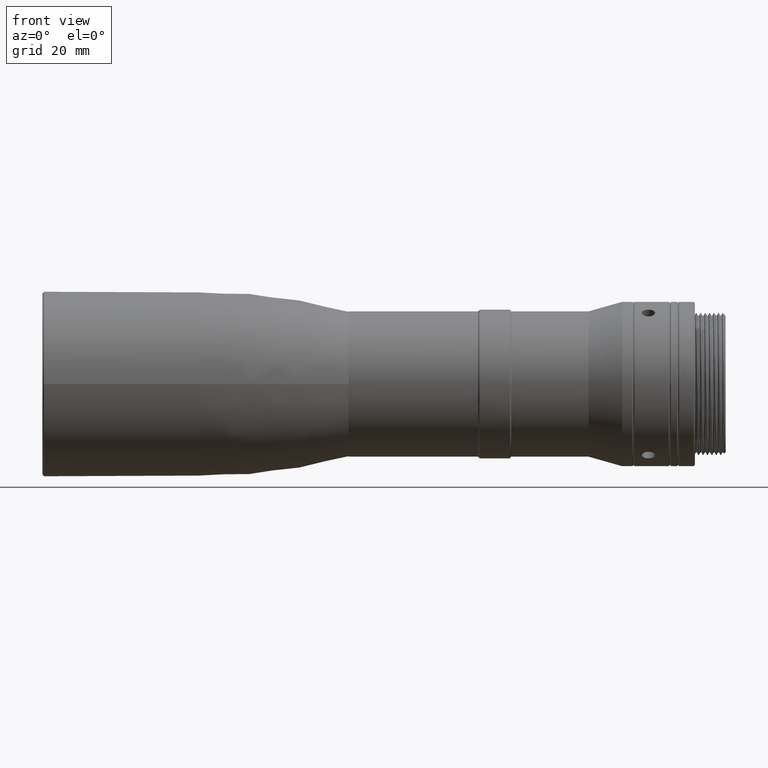
[diagram: clean part render]
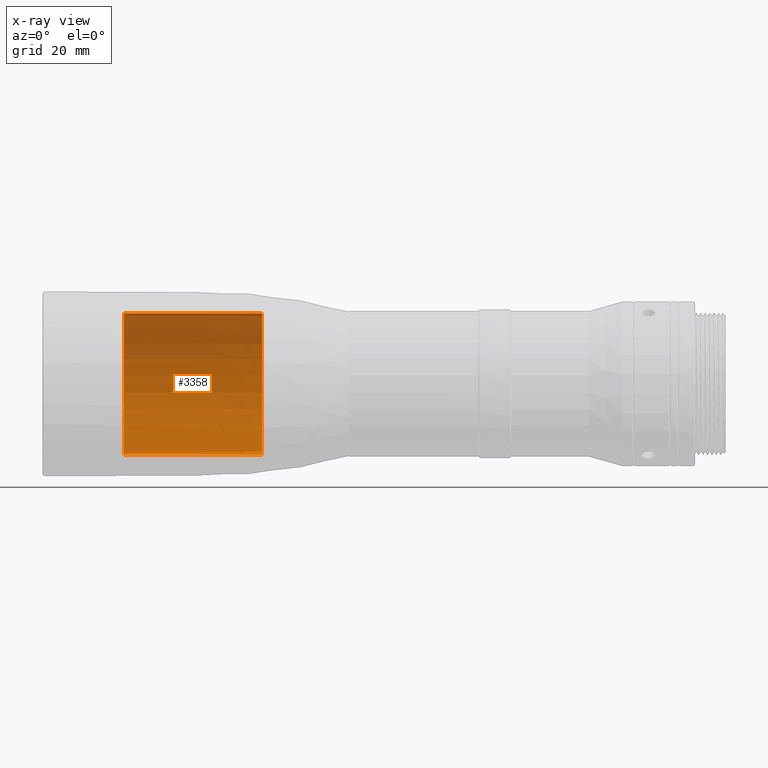
[diagram: x-ray — body ghosted, one internal face saturated and labeled with its STEP entity id]
A machine part, front view, then the same camera in x-ray: the body is ghosted and one INTERNAL B-rep face — a face not visible from any outside direction — is saturated and labeled: STEP entity #3358.
In plain terms, the highlighted cylindrical surface (partial cylindrical patch) has radius 12.6331 mm, axis along (-1, 0, 0).
Its self-contained STEP definition (entity closure, byte-faithful):
#989 = CARTESIAN_POINT ( 'NONE',  ( -15.52149944627313083, 0.000000000000000000, 0.000000000000000000 ) ) ;
#1296 = LINE ( 'NONE', #17005, #10751 ) ;
#2287 = ORIENTED_EDGE ( 'NONE', *, *, #12516, .F. ) ;
#2369 = CIRCLE ( 'NONE', #16040, 12.63312487934869921 ) ;
#2855 = CIRCLE ( 'NONE', #7745, 12.63312487934869921 ) ;
#3074 = EDGE_CURVE ( 'NONE', #13831, #12645, #13966, .T. ) ;
#3358 = ADVANCED_FACE ( 'NONE', ( #13576 ), #4640, .T. ) ;
#4178 = DIRECTION ( 'NONE',  ( 0.000000000000000000, 0.000000000000000000, 1.000000000000000000 ) ) ;
#4426 = EDGE_CURVE ( 'NONE', #14087, #12645, #2369, .T. ) ;
#4640 = CYLINDRICAL_SURFACE ( 'NONE', #14860, 12.63312487934869921 ) ;
#5221 = EDGE_LOOP ( 'NONE', ( #14060, #7344, #10333, #2287 ) ) ;
#6103 = CARTESIAN_POINT ( 'NONE',  ( -15.52149944627313083, 0.000000000000000000, 12.63312487934869921 ) ) ;
#6823 = CARTESIAN_POINT ( 'NONE',  ( -40.21000000000000085, 1.547111594672317748E-15, -12.63312487934869921 ) ) ;
#7273 = VECTOR ( 'NONE', #16729, 1000.000000000000000 ) ;
#7333 = DIRECTION ( 'NONE',  ( -1.000000000000000000, 0.000000000000000000, 0.000000000000000000 ) ) ;
#7344 = ORIENTED_EDGE ( 'NONE', *, *, #3074, .T. ) ;
#7745 = AXIS2_PLACEMENT_3D ( 'NONE', #989, #9839, #14375 ) ;
#8706 = CARTESIAN_POINT ( 'NONE',  ( -40.21000000000000085, 0.000000000000000000, 12.63312487934869921 ) ) ;
#9517 = CARTESIAN_POINT ( 'NONE',  ( 53.78999999999999915, 1.547111594672317748E-15, -12.63312487934869921 ) ) ;
#9621 = DIRECTION ( 'NONE',  ( -1.000000000000000000, 0.000000000000000000, 0.000000000000000000 ) ) ;
#9839 = DIRECTION ( 'NONE',  ( -1.000000000000000000, -0.000000000000000000, -0.000000000000000000 ) ) ;
#10184 = CARTESIAN_POINT ( 'NONE',  ( -40.21000000000000085, 0.000000000000000000, -1.160720443787336835E-46 ) ) ;
#10333 = ORIENTED_EDGE ( 'NONE', *, *, #4426, .F. ) ;
#10751 = VECTOR ( 'NONE', #9621, 1000.000000000000000 ) ;
#12516 = EDGE_CURVE ( 'NONE', #16930, #14087, #1296, .T. ) ;
#12645 = VERTEX_POINT ( 'NONE', #6823 ) ;
#13296 = CARTESIAN_POINT ( 'NONE',  ( 53.78999999999999915, 0.000000000000000000, -1.160720443787336835E-46 ) ) ;
#13576 = FACE_OUTER_BOUND ( 'NONE', #5221, .T. ) ;
#13831 = VERTEX_POINT ( 'NONE', #16318 ) ;
#13966 = LINE ( 'NONE', #9517, #7273 ) ;
#14060 = ORIENTED_EDGE ( 'NONE', *, *, #18803, .T. ) ;
#14087 = VERTEX_POINT ( 'NONE', #8706 ) ;
#14375 = DIRECTION ( 'NONE',  ( 0.000000000000000000, 0.000000000000000000, 1.000000000000000000 ) ) ;
#14860 = AXIS2_PLACEMENT_3D ( 'NONE', #13296, #17780, #17589 ) ;
#16040 = AXIS2_PLACEMENT_3D ( 'NONE', #10184, #7333, #4178 ) ;
#16318 = CARTESIAN_POINT ( 'NONE',  ( -15.52149944627313083, 1.547111594672317748E-15, -12.63312487934869921 ) ) ;
#16729 = DIRECTION ( 'NONE',  ( -1.000000000000000000, 0.000000000000000000, 0.000000000000000000 ) ) ;
#16930 = VERTEX_POINT ( 'NONE', #6103 ) ;
#17005 = CARTESIAN_POINT ( 'NONE',  ( 53.78999999999999915, 0.000000000000000000, 12.63312487934869921 ) ) ;
#17589 = DIRECTION ( 'NONE',  ( 0.000000000000000000, 0.000000000000000000, 1.000000000000000000 ) ) ;
#17780 = DIRECTION ( 'NONE',  ( -1.000000000000000000, 0.000000000000000000, 0.000000000000000000 ) ) ;
#18803 = EDGE_CURVE ( 'NONE', #16930, #13831, #2855, .T. ) ;